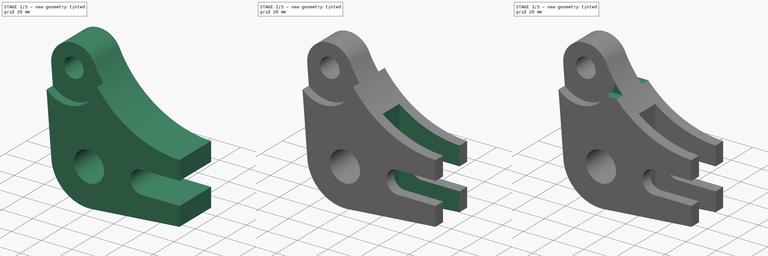
[diagram: build sequence overview — one tinted view per stage of 3, left to right]
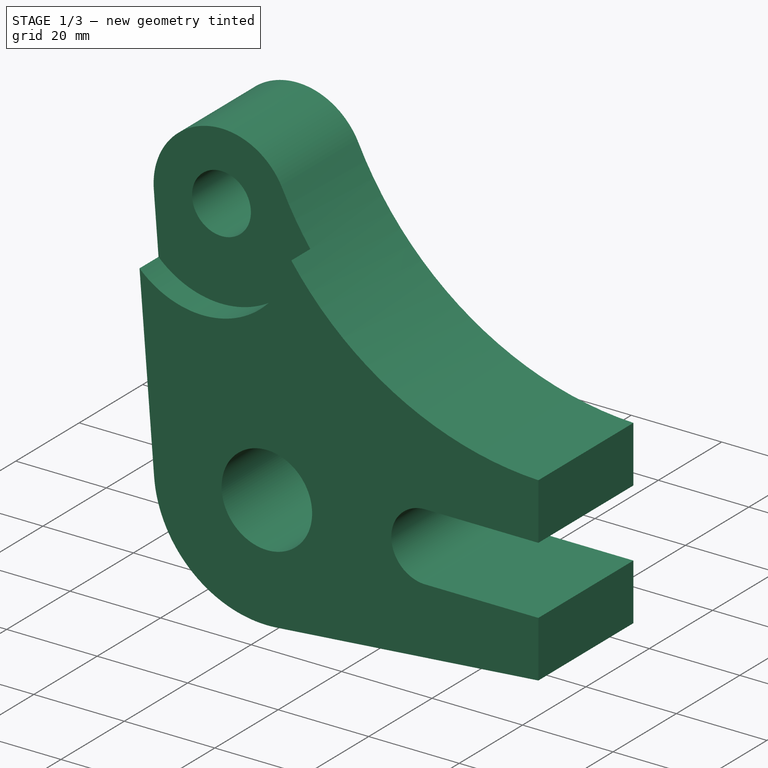
[diagram: stage 1 of 3 — iso view after this stage's code; geometry added in this stage tinted green]
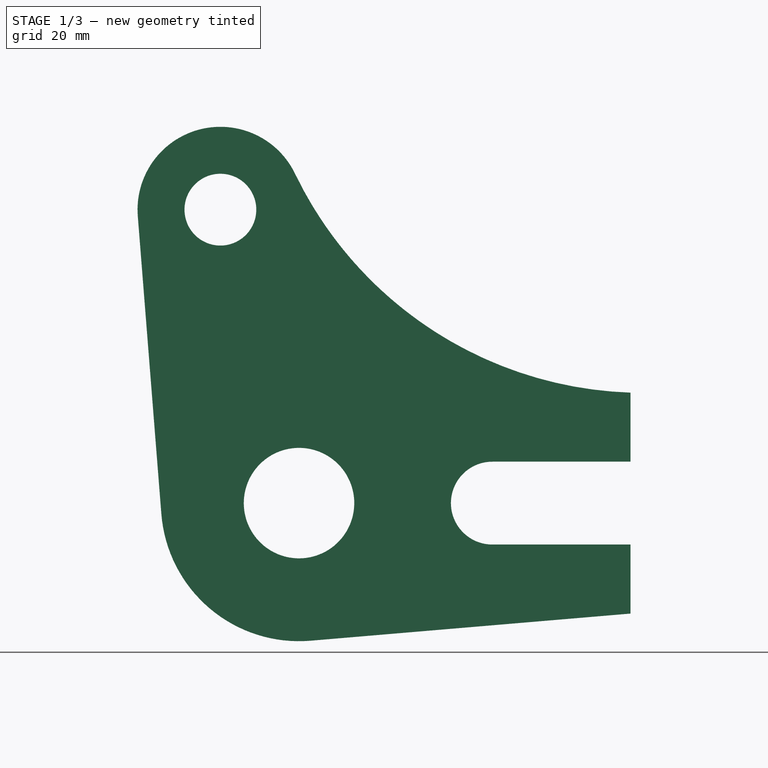
[diagram: stage 1 of 3 — front view after this stage's code; geometry added in this stage tinted green]
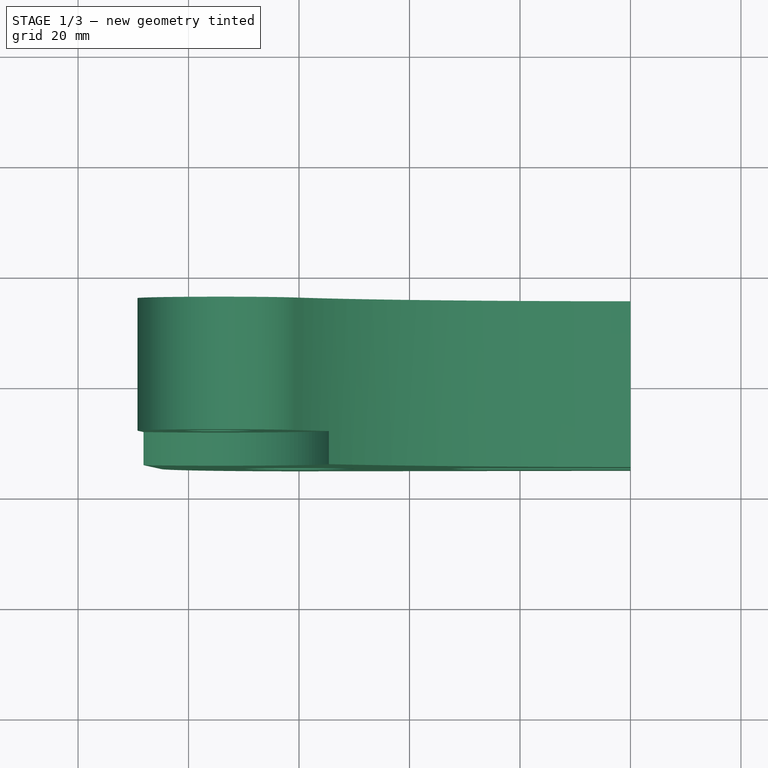
[diagram: stage 1 of 3 — top view after this stage's code; geometry added in this stage tinted green]
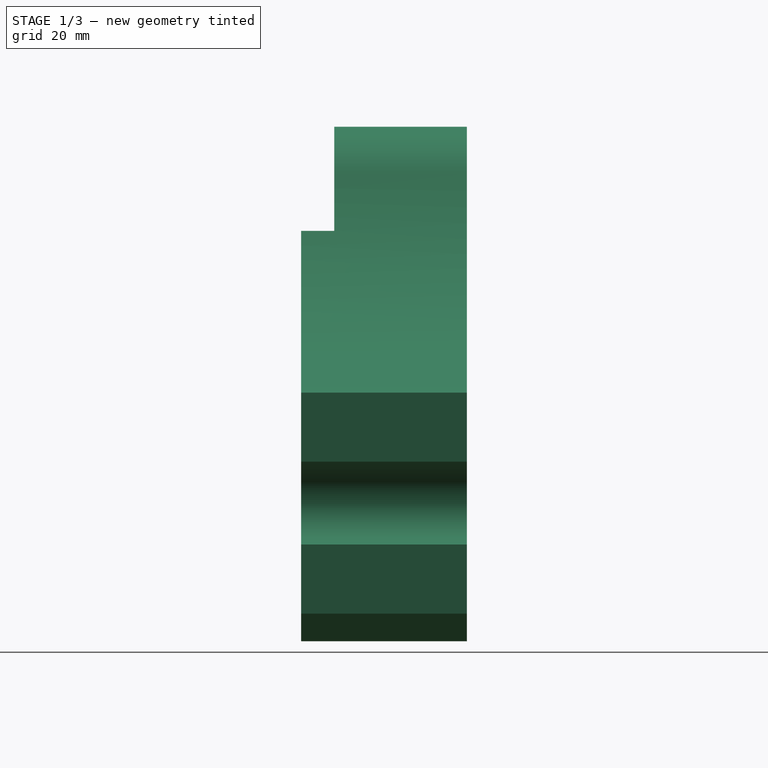
[diagram: stage 1 of 3 — right view after this stage's code; geometry added in this stage tinted green]
FCSTD DOCUMENT  (FreeCAD 0.16R)
Label: Ejer Final 31
License: All rights reserved
LicenseURL: http://en.wikipedia.org/wiki/All_rights_reserved
objects: Sketcher::SketchObject×6, PartDesign::Pocket×5, PartDesign::Pad×1
note: 18 computed .brp shape members not serialized (recipe doc carries the construction recipe); baked Part::Feature solids carry a one-line shape summary decoded from their .brp

FEATURE [Sketcher::SketchObject] Sketch
  Placement = pos=(0,0,0) rot=(1,0,0;1.5708rad)
  sketch-geometry (14):
    g0: ArcOfCircle CenterX=0 CenterY=0 CenterZ=0 NormalX=0 NormalY=0 NormalZ=1 Radius=25 StartAngle=3.22056 EndAngle=4.79701
    g1: Circle CenterX=0 CenterY=0 CenterZ=0 NormalX=0 NormalY=0 NormalZ=1 Radius=10
    g2: LineSegment StartX=2.11311 StartY=-24.9105 StartZ=0 EndX=60 EndY=-20 EndZ=0
    g3: LineSegment StartX=-24.9221 StartY=-1.97206 StartZ=0 EndX=-29.1883 EndY=51.9427 EndZ=0
    g4: LineSegment StartX=60 StartY=-20 StartZ=0 EndX=60 EndY=-7.5 EndZ=0
    g5: LineSegment StartX=60 StartY=-7.5 StartZ=0 EndX=35 EndY=-7.5 EndZ=0
    g6: LineSegment StartX=35 StartY=7.5 StartZ=0 EndX=60 EndY=7.5 EndZ=0
    g7: LineSegment StartX=60 StartY=7.5 StartZ=0 EndX=60 EndY=20 EndZ=0
    g8: ArcOfCircle CenterX=35 CenterY=0 CenterZ=0 NormalX=0 NormalY=0 NormalZ=1 Radius=7.5 StartAngle=1.5708 EndAngle=4.71239
    g9: LineSegment [constr] StartX=0 StartY=0 StartZ=0 EndX=0 EndY=98.9449 EndZ=0
    g10: LineSegment [constr] StartX=0 StartY=0 StartZ=0 EndX=-14.235 EndY=53.1259 EndZ=0
    g11: Circle CenterX=-14.235 CenterY=53.1259 CenterZ=0 NormalX=0 NormalY=0 NormalZ=1 Radius=6.5
    g12: ArcOfCircle CenterX=-14.235 CenterY=53.1259 CenterZ=0 NormalX=0 NormalY=0 NormalZ=1 Radius=15 StartAngle=0.448196 EndAngle=3.22056
    g13: ArcOfCircle CenterX=62.3695 CenterY=89.9599 CenterZ=0 NormalX=0 NormalY=0 NormalZ=1 Radius=70 StartAngle=3.58979 EndAngle=4.67853
  constraints (41):
    c: Coincident(g0,g-1)
    c: Radius(g0) = 25
    c: Radius(g1) = 10
    c: Coincident(g4,g2)
    c: Vertical(g4)
    c: Coincident(g4,g5)
    c: Horizontal(g5)
    c: Horizontal(g6)
    c: Coincident(g6,g7)
    c: Vertical(g7)
    c: DistanceY(g4,g6) = 15
    c: PointOnObject(g8,g-1)
    c: DistanceY(g2,g7) = 40
    c: Coincident(g0,g1)
    c: DistanceX(g-1,g8) = 35
    c: Coincident(g0,g3)
    c: Coincident(g0,g2)
    c: Coincident(g8,g6)
    c: Coincident(g8,g5)
    c: Radius(g8) = 7.5
    c: Tangent(g0,g3)
    c: DistanceX(g8,g6) = 25
    c: DistanceX(g8,g4) = 25
    c: Coincident(g9,g-1)
    c: Vertical(g9)
    c: Coincident(g10,g-1)
    c: Angle(g9,g10) = 0.261799
    c: Distance(g-1,g10) = 55
    c: Coincident(g11,g10)
    c: Radius(g11) = 6.5
    c: Coincident(g12,g10)
    c: Radius(g12) = 15
    c: Coincident(g13,g7)
    c: Radius(g13) = 70
    c: Coincident(g12,g3)
    c: Tangent(g13,g12)
    c: Tangent(g3,g12)
    c: Tangent(g2,g0)
    c: Tangent(g5,g8)
    c: Coincident(g12,g13)
    c: DistanceY(g4,g4) = 12.5
FEATURE [PartDesign::Pad] Pad
  Length = 30
  Length2 = 100
  Midplane = true
  Placement = pos=(0,0,0) rot=(1,0,0;1.5708rad)
  Sketch = -> Sketch
  Type = 0
FEATURE [Sketcher::SketchObject] Sketch001
  ExternalGeometry = -> [Pad]
  Placement = pos=(0,-15,0) rot=(1,0,0;1.5708rad)
  Support = -> Pad [Face14]
  sketch-geometry (1):
    g0: Circle CenterX=-14.235 CenterY=53.1259 CenterZ=0 NormalX=0 NormalY=0 NormalZ=1 Radius=20
  constraints (2):
    c: Coincident(g0,g-3)
    c: Radius(g0) = 20
FEATURE [PartDesign::Pocket] Pocket
  Length = 6
  Placement = pos=(0,0,0) rot=(1,0,0;1.5708rad)
  Sketch = -> Sketch001
  Type = 0
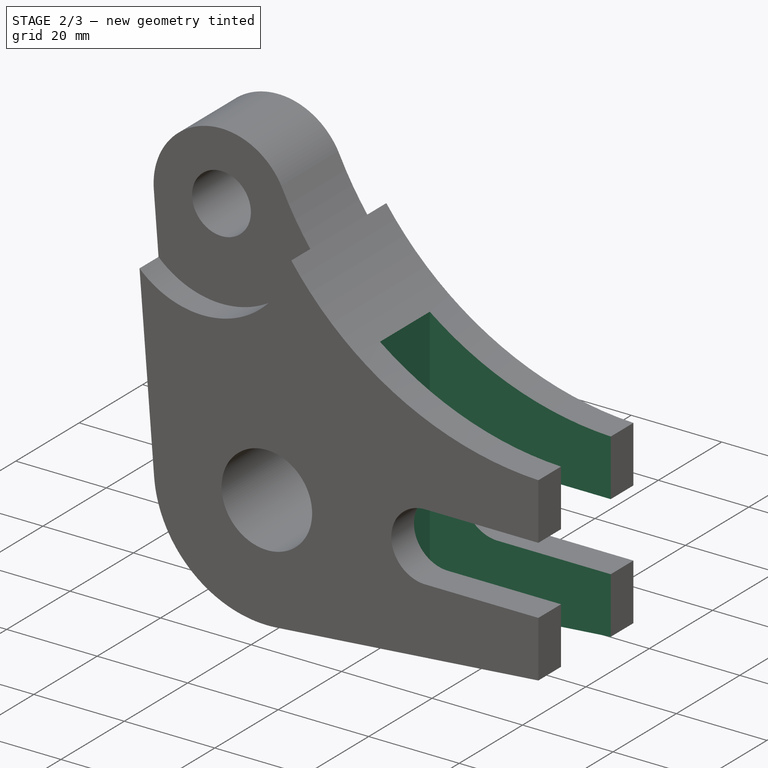
[diagram: stage 2 of 3 — iso view after this stage's code; geometry added in this stage tinted green]
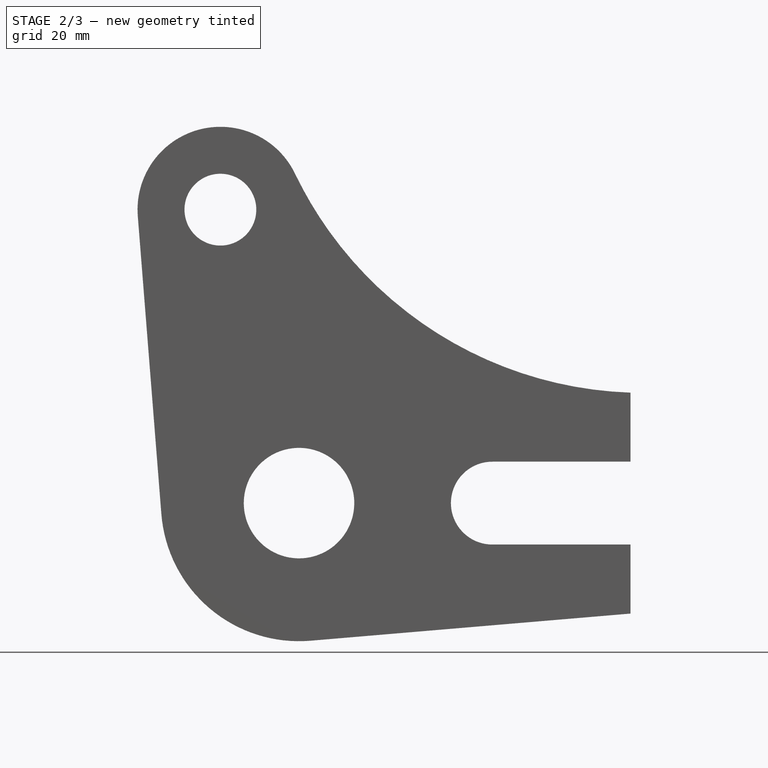
[diagram: stage 2 of 3 — front view after this stage's code; geometry added in this stage tinted green]
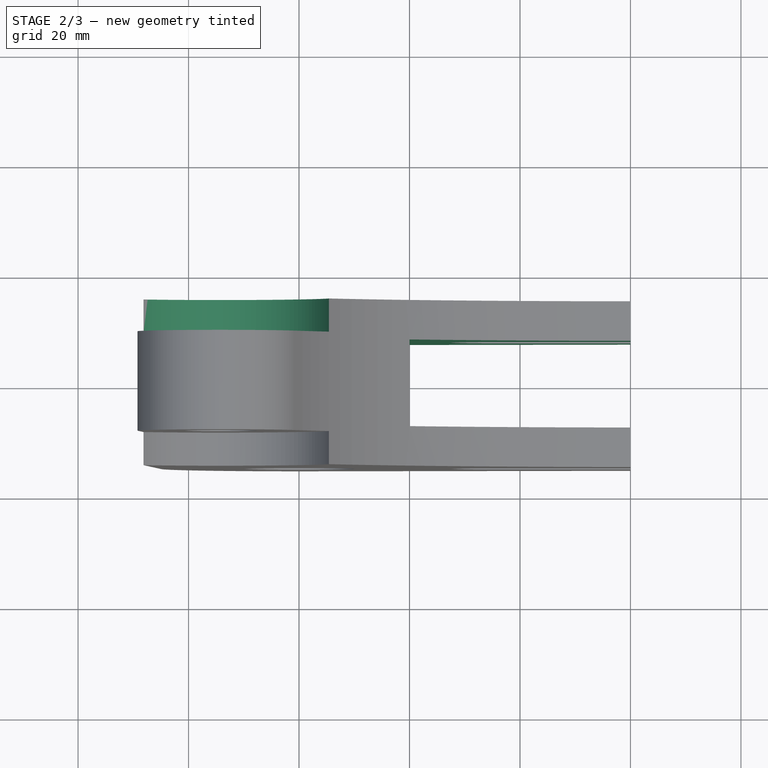
[diagram: stage 2 of 3 — top view after this stage's code; geometry added in this stage tinted green]
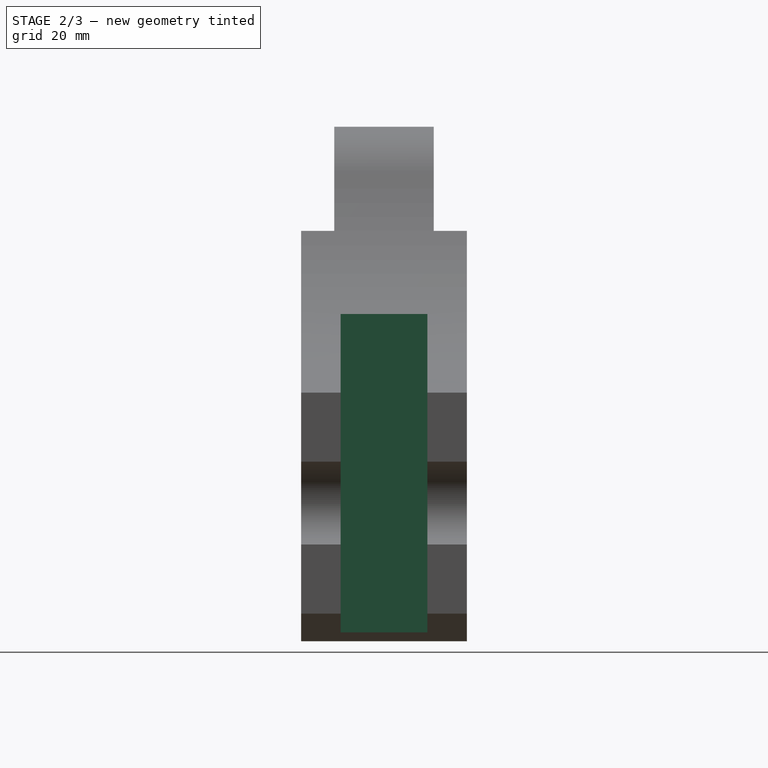
[diagram: stage 2 of 3 — right view after this stage's code; geometry added in this stage tinted green]
FEATURE [Sketcher::SketchObject] Sketch002
  ExternalGeometry = -> [Pocket]
  Placement = pos=(0,15,0) rot=(-1,0,0;1.5708rad)
  Support = -> Pocket [Face2]
  sketch-geometry (1):
    g0: Circle CenterX=-14.235 CenterY=-53.1259 CenterZ=0 NormalX=0 NormalY=0 NormalZ=1 Radius=20
  constraints (2):
    c: Coincident(g0,g-3)
    c: Radius(g0) = 20
FEATURE [PartDesign::Pocket] Pocket001
  Length = 6
  Placement = pos=(0,0,0) rot=(1,0,0;1.5708rad)
  Sketch = -> Sketch002
  Type = 0
FEATURE [Sketcher::SketchObject] Sketch003
  Placement = pos=(60,0,0) rot=(0.707107,0,0.707107;3.14159rad)
  Support = -> Pocket001 [Face14]
  sketch-geometry (4):
    g0: LineSegment StartX=72.7051 StartY=7.84704 StartZ=0 EndX=-32.4843 EndY=7.84704 EndZ=0
    g1: LineSegment StartX=-32.4843 StartY=7.84704 StartZ=0 EndX=-32.4843 EndY=-7.84704 EndZ=0
    g2: LineSegment StartX=-32.4843 StartY=-7.84704 StartZ=0 EndX=72.7051 EndY=-7.84704 EndZ=0
    g3: LineSegment StartX=72.7051 StartY=-7.84704 StartZ=0 EndX=72.7051 EndY=7.84704 EndZ=0
  constraints (9):
    c: Coincident(g0,g1)
    c: Coincident(g1,g2)
    c: Coincident(g2,g3)
    c: Coincident(g3,g0)
    c: Horizontal(g0)
    c: Horizontal(g2)
    c: Vertical(g1)
    c: Vertical(g3)
    c: Symmetric(g1,g0,g-1)
FEATURE [PartDesign::Pocket] Pocket002
  Length = 40
  Placement = pos=(0,0,0) rot=(1,0,0;1.5708rad)
  Sketch = -> Sketch003
  Type = 0
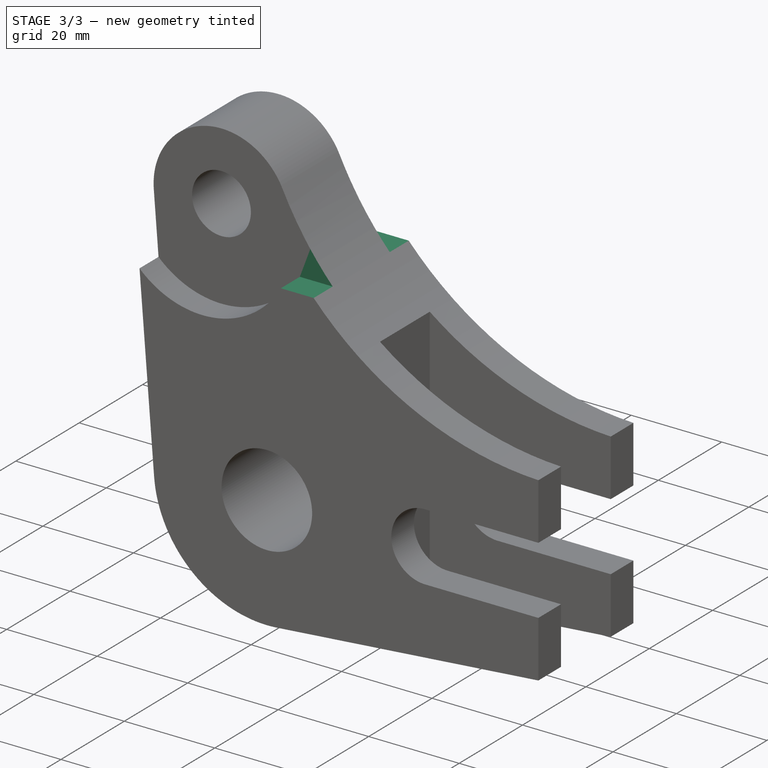
[diagram: stage 3 of 3 — iso view after this stage's code; geometry added in this stage tinted green]
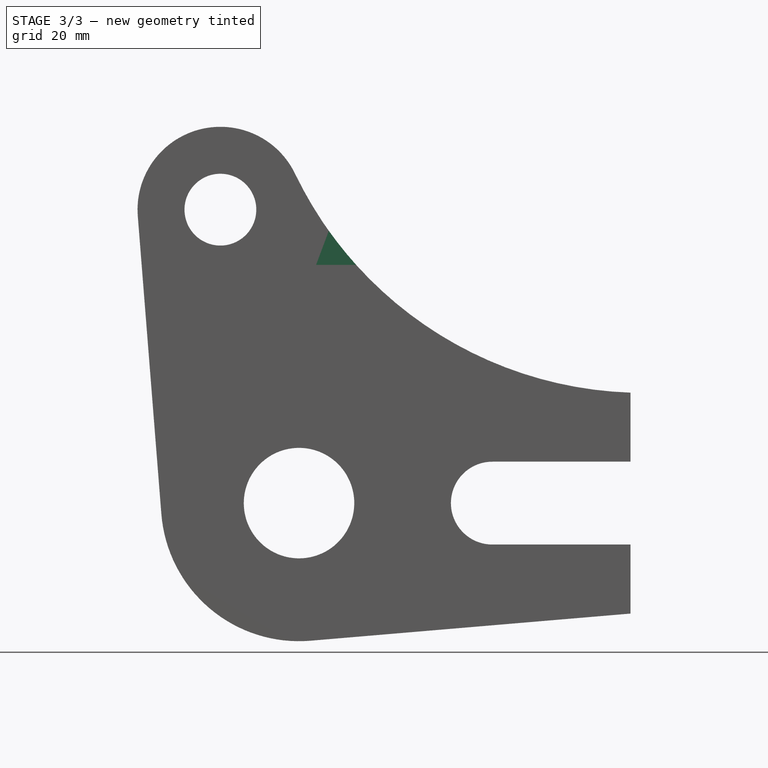
[diagram: stage 3 of 3 — front view after this stage's code; geometry added in this stage tinted green]
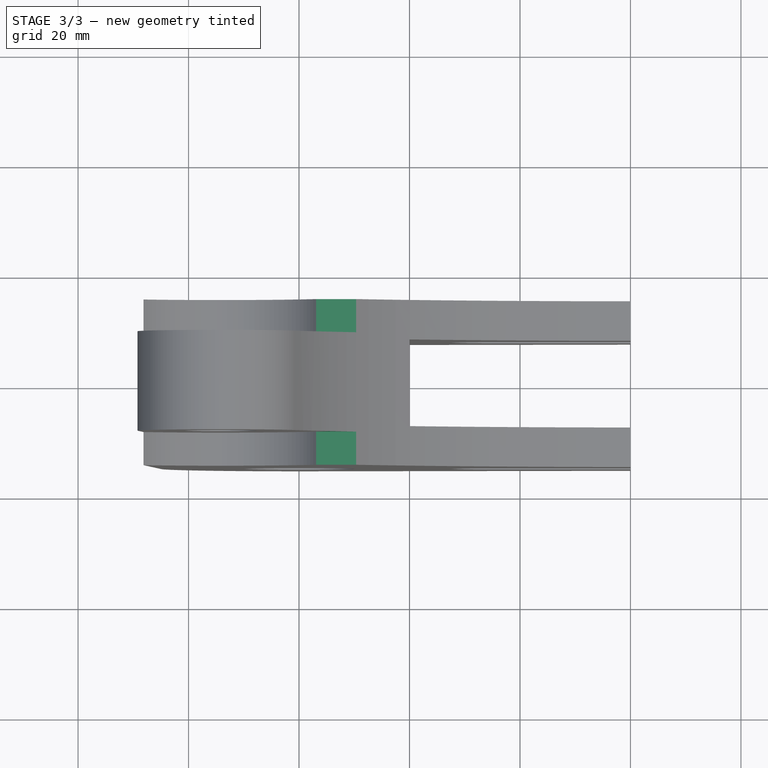
[diagram: stage 3 of 3 — top view after this stage's code; geometry added in this stage tinted green]
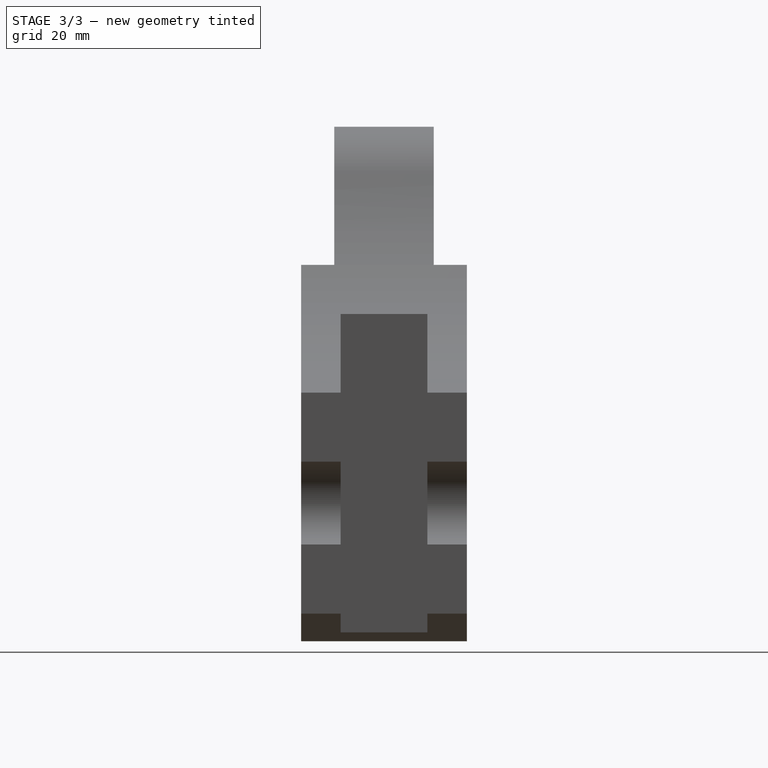
[diagram: stage 3 of 3 — right view after this stage's code; geometry added in this stage tinted green]
FEATURE [Sketcher::SketchObject] Sketch004
  ExternalGeometry = -> [Pocket002]
  Placement = pos=(0,-15,0) rot=(1,0,0;1.5708rad)
  Support = -> Pocket002 [Face10]
  sketch-geometry (4):
    g0: LineSegment StartX=-3.59832 StartY=43.1259 StartZ=0 EndX=15.3471 EndY=43.1259 EndZ=0
    g1: LineSegment StartX=15.3471 StartY=43.1259 StartZ=0 EndX=15.3471 EndY=51.2387 EndZ=0
    g2: LineSegment StartX=15.3471 StartY=51.2387 StartZ=0 EndX=-3.59832 EndY=51.2387 EndZ=0
    g3: LineSegment StartX=-3.59832 StartY=51.2387 StartZ=0 EndX=-3.59832 EndY=43.1259 EndZ=0
  constraints (9):
    c: Coincident(g0,g1)
    c: Coincident(g1,g2)
    c: Coincident(g2,g3)
    c: Coincident(g3,g0)
    c: Horizontal(g0)
    c: Horizontal(g2)
    c: Vertical(g1)
    c: Vertical(g3)
    c: DistanceY(g0,g-3) = 10
FEATURE [PartDesign::Pocket] Pocket003
  Length = 6
  Placement = pos=(0,0,0) rot=(1,0,0;1.5708rad)
  Sketch = -> Sketch004
  Type = 0
FEATURE [Sketcher::SketchObject] Sketch005
  ExternalGeometry = -> [Pocket003]
  Placement = pos=(0,15,0) rot=(-1,0,0;1.5708rad)
  Support = -> Pocket003 [Face7]
  sketch-geometry (4):
    g0: LineSegment StartX=-7.46159 StartY=-43.1259 StartZ=0 EndX=27.0757 EndY=-43.1259 EndZ=0
    g1: LineSegment StartX=27.0757 StartY=-43.1259 StartZ=0 EndX=27.0757 EndY=-53.2786 EndZ=0
    g2: LineSegment StartX=27.0757 StartY=-53.2786 StartZ=0 EndX=-7.46159 EndY=-53.2786 EndZ=0
    g3: LineSegment StartX=-7.46159 StartY=-53.2786 StartZ=0 EndX=-7.46159 EndY=-43.1259 EndZ=0
  constraints (9):
    c: Coincident(g0,g1)
    c: Coincident(g1,g2)
    c: Coincident(g2,g3)
    c: Coincident(g3,g0)
    c: Horizontal(g0)
    c: Horizontal(g2)
    c: Vertical(g1)
    c: Vertical(g3)
    c: DistanceY(g-3,g0) = 10
FEATURE [PartDesign::Pocket] Pocket004
  Length = 6
  Placement = pos=(0,0,0) rot=(1,0,0;1.5708rad)
  Sketch = -> Sketch005
  Type = 0
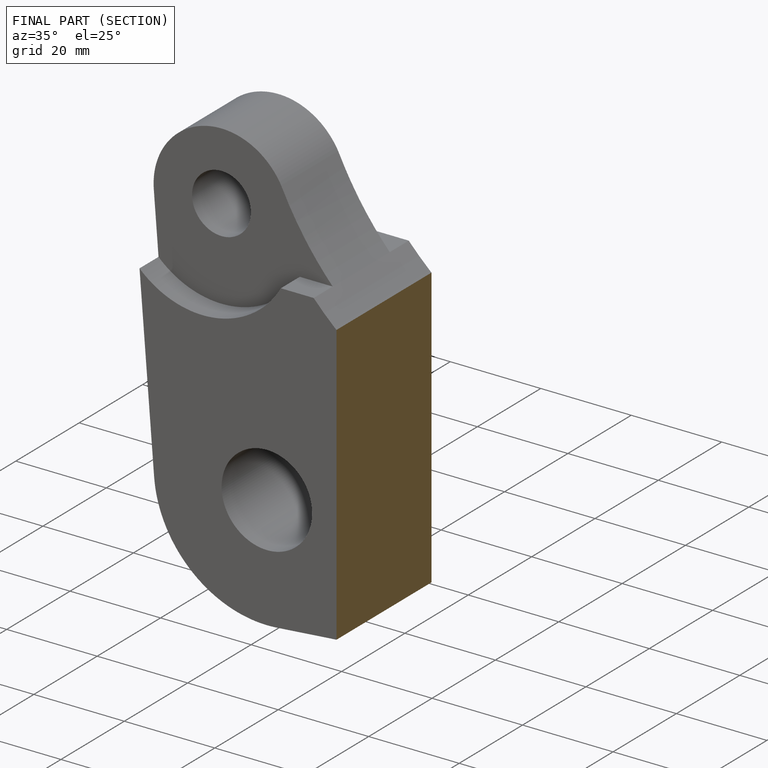
[diagram: finished part — half-section view (interior)]
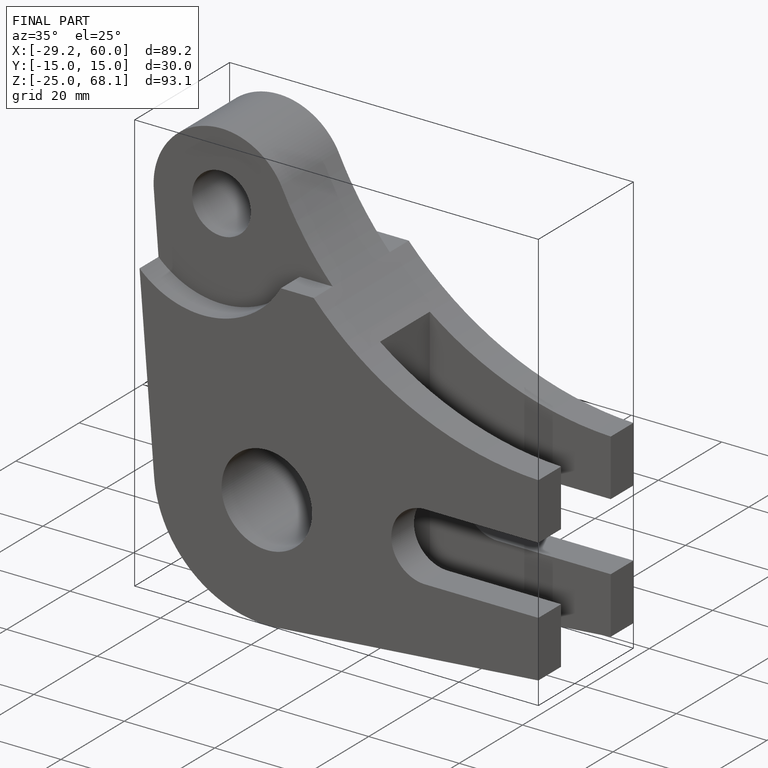
[diagram: finished part — iso view with bounding-box wireframe]
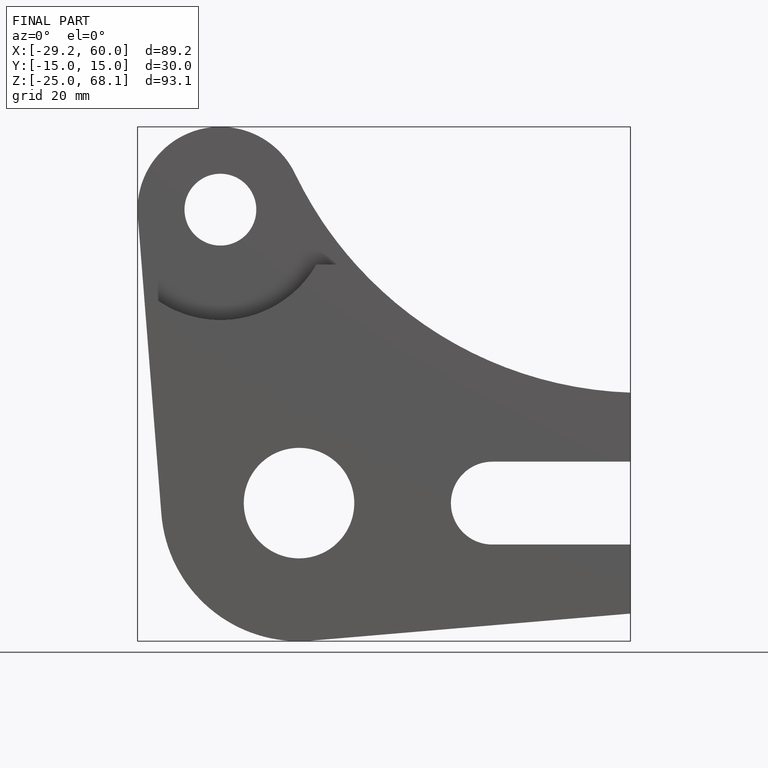
[diagram: finished part — front view with bounding-box wireframe]
